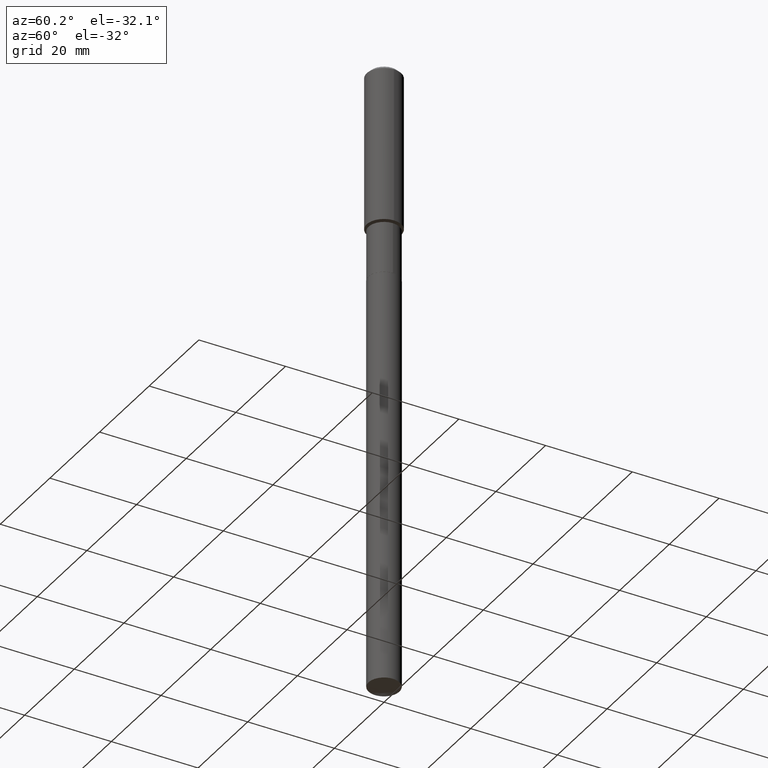
[diagram: clean part render]
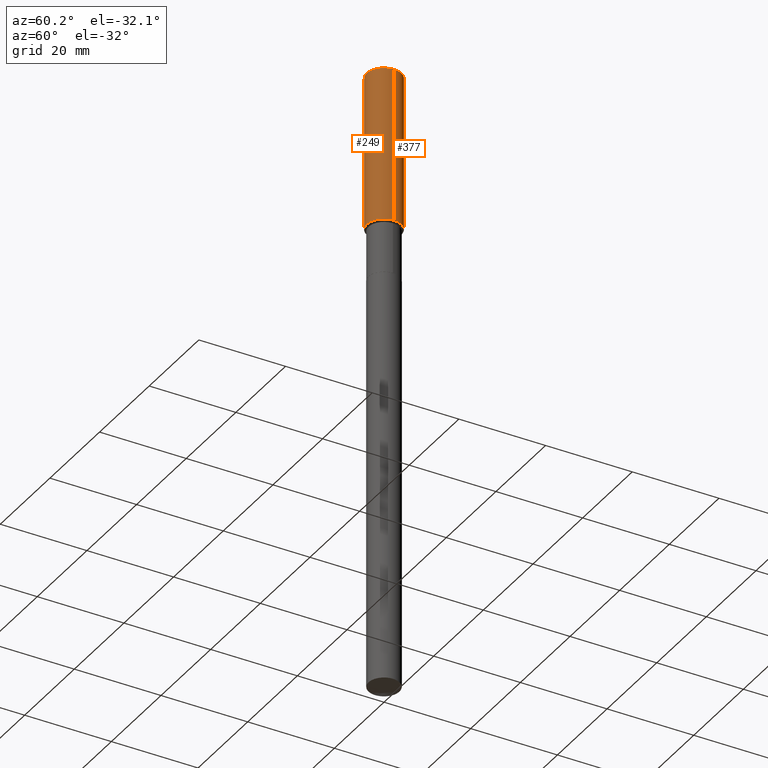
[diagram: same view with one multi-face feature highlighted, each face labeled with its STEP entity id]
A machine part, auxiliary view. The highlighted faces form ONE feature: a constant-radius fillet chain: 2 tangent blend faces with common blend radius 4.0005 mm. The faces share edges in the B-rep.
Their STEP definitions:
[1] entity #377 (Cylinder):
#11 = DIRECTION ( 'NONE',  ( -2.445468806185136877E-29, 3.491481338843145188E-15, 1.000000000000000000 ) ) ;
#16 = VERTEX_POINT ( 'NONE', #53 ) ;
#20 = ORIENTED_EDGE ( 'NONE', *, *, #34, .F. ) ;
#21 = VERTEX_POINT ( 'NONE', #49 ) ;
#34 = EDGE_CURVE ( 'NONE', #21, #16, #251, .T. ) ;
#43 = CARTESIAN_POINT ( 'NONE',  ( 0.1575000000000000844, -1.099816621735587677E-15, 7.679978421878603638E-30 ) ) ;
#49 = CARTESIAN_POINT ( 'NONE',  ( 0.1575000000000001676, -6.116726157519304807E-15, -1.436900000000000288 ) ) ;
#53 = CARTESIAN_POINT ( 'NONE',  ( 0.1575000000000000011, -1.209798283909146741E-15, -0.03150000000000019451 ) ) ;
#56 = CARTESIAN_POINT ( 'NONE',  ( 7.703226739483228723E-31, -1.099816621735597661E-16, -0.03150000000000019451 ) ) ;
#66 = CIRCLE ( 'NONE', #281, 0.1575000000000000011 ) ;
#74 = CARTESIAN_POINT ( 'NONE',  ( -0.1575000000000000011, -1.444340790156479606E-15, -0.03150000000000019451 ) ) ;
#91 = VECTOR ( 'NONE', #11, 39.37007874015748143 ) ;
#124 = EDGE_CURVE ( 'NONE', #211, #476, #339, .T. ) ;
#125 = CYLINDRICAL_SURFACE ( 'NONE', #471, 0.1575000000000000844 ) ;
#150 = CARTESIAN_POINT ( 'NONE',  ( -0.1575000000000000844, 1.119104808822158392E-15, -7.747322767151481189E-30 ) ) ;
#151 = DIRECTION ( 'NONE',  ( -2.445468806185136597E-29, 3.491481338843145583E-15, 1.000000000000000000 ) ) ;
#163 = ORIENTED_EDGE ( 'NONE', *, *, #124, .T. ) ;
#169 = CARTESIAN_POINT ( 'NONE',  ( 0.000000000000000000, 0.000000000000000000, 0.000000000000000000 ) ) ;
#185 = DIRECTION ( 'NONE',  ( 1.000000000000000000, -6.982962677686267499E-15, 0.000000000000000000 ) ) ;
#188 = CIRCLE ( 'NONE', #296, 0.1575000000000001676 ) ;
#211 = VERTEX_POINT ( 'NONE', #439 ) ;
#217 = CARTESIAN_POINT ( 'NONE',  ( 3.513894127607423393E-29, -5.016909535783716538E-15, -1.436900000000000288 ) ) ;
#240 = ORIENTED_EDGE ( 'NONE', *, *, #344, .F. ) ;
#245 = VECTOR ( 'NONE', #298, 39.37007874015748143 ) ;
#251 = LINE ( 'NONE', #43, #91 ) ;
#281 = AXIS2_PLACEMENT_3D ( 'NONE', #56, #442, #302 ) ;
#296 = AXIS2_PLACEMENT_3D ( 'NONE', #217, #151, #185 ) ;
#297 = ORIENTED_EDGE ( 'NONE', *, *, #329, .T. ) ;
#298 = DIRECTION ( 'NONE',  ( -2.445468806185136877E-29, 3.491481338843145188E-15, 1.000000000000000000 ) ) ;
#302 = DIRECTION ( 'NONE',  ( 1.000000000000000000, -6.982962677686265922E-15, 0.000000000000000000 ) ) ;
#324 = DIRECTION ( 'NONE',  ( 1.000000000000000000, -6.982962677686267499E-15, 4.876176775795936353E-29 ) ) ;
#329 = EDGE_CURVE ( 'NONE', #21, #211, #188, .T. ) ;
#339 = LINE ( 'NONE', #150, #245 ) ;
#344 = EDGE_CURVE ( 'NONE', #16, #476, #66, .T. ) ;
#354 = DIRECTION ( 'NONE',  ( -2.445468806185136597E-29, 3.491481338843145583E-15, 1.000000000000000000 ) ) ;
#369 = EDGE_LOOP ( 'NONE', ( #297, #163, #240, #20 ) ) ;
#377 = ADVANCED_FACE ( 'NONE', ( #461 ), #125, .T. ) ;
#439 = CARTESIAN_POINT ( 'NONE',  ( -0.1575000000000001676, -3.897804726961557357E-15, -1.436900000000000288 ) ) ;
#442 = DIRECTION ( 'NONE',  ( -2.445468806185136597E-29, 3.491481338843145583E-15, 1.000000000000000000 ) ) ;
#461 = FACE_OUTER_BOUND ( 'NONE', #369, .T. ) ;
#471 = AXIS2_PLACEMENT_3D ( 'NONE', #169, #354, #324 ) ;
#476 = VERTEX_POINT ( 'NONE', #74 ) ;
[2] entity #249 (Cylinder):
#11 = DIRECTION ( 'NONE',  ( -2.445468806185136877E-29, 3.491481338843145188E-15, 1.000000000000000000 ) ) ;
#16 = VERTEX_POINT ( 'NONE', #53 ) ;
#21 = VERTEX_POINT ( 'NONE', #49 ) ;
#25 = CIRCLE ( 'NONE', #109, 0.1575000000000001676 ) ;
#34 = EDGE_CURVE ( 'NONE', #21, #16, #251, .T. ) ;
#43 = CARTESIAN_POINT ( 'NONE',  ( 0.1575000000000000844, -1.099816621735587677E-15, 7.679978421878603638E-30 ) ) ;
#49 = CARTESIAN_POINT ( 'NONE',  ( 0.1575000000000001676, -6.116726157519304807E-15, -1.436900000000000288 ) ) ;
#53 = CARTESIAN_POINT ( 'NONE',  ( 0.1575000000000000011, -1.209798283909146741E-15, -0.03150000000000019451 ) ) ;
#74 = CARTESIAN_POINT ( 'NONE',  ( -0.1575000000000000011, -1.444340790156479606E-15, -0.03150000000000019451 ) ) ;
#91 = VECTOR ( 'NONE', #11, 39.37007874015748143 ) ;
#109 = AXIS2_PLACEMENT_3D ( 'NONE', #372, #300, #262 ) ;
#115 = DIRECTION ( 'NONE',  ( 1.000000000000000000, -6.982962677686265922E-15, 0.000000000000000000 ) ) ;
#124 = EDGE_CURVE ( 'NONE', #211, #476, #339, .T. ) ;
#142 = ORIENTED_EDGE ( 'NONE', *, *, #34, .T. ) ;
#150 = CARTESIAN_POINT ( 'NONE',  ( -0.1575000000000000844, 1.119104808822158392E-15, -7.747322767151481189E-30 ) ) ;
#157 = DIRECTION ( 'NONE',  ( -2.445468806185136597E-29, 3.491481338843145583E-15, 1.000000000000000000 ) ) ;
#180 = EDGE_LOOP ( 'NONE', ( #254, #441, #142, #406 ) ) ;
#181 = AXIS2_PLACEMENT_3D ( 'NONE', #263, #376, #378 ) ;
#193 = CARTESIAN_POINT ( 'NONE',  ( 7.703226739483228723E-31, -1.099816621735597661E-16, -0.03150000000000019451 ) ) ;
#211 = VERTEX_POINT ( 'NONE', #439 ) ;
#245 = VECTOR ( 'NONE', #298, 39.37007874015748143 ) ;
#249 = ADVANCED_FACE ( 'NONE', ( #304 ), #448, .T. ) ;
#251 = LINE ( 'NONE', #43, #91 ) ;
#254 = ORIENTED_EDGE ( 'NONE', *, *, #124, .F. ) ;
#262 = DIRECTION ( 'NONE',  ( 1.000000000000000000, -6.982962677686267499E-15, 0.000000000000000000 ) ) ;
#263 = CARTESIAN_POINT ( 'NONE',  ( 0.000000000000000000, 0.000000000000000000, 0.000000000000000000 ) ) ;
#265 = AXIS2_PLACEMENT_3D ( 'NONE', #193, #157, #115 ) ;
#289 = EDGE_CURVE ( 'NONE', #476, #16, #449, .T. ) ;
#298 = DIRECTION ( 'NONE',  ( -2.445468806185136877E-29, 3.491481338843145188E-15, 1.000000000000000000 ) ) ;
#300 = DIRECTION ( 'NONE',  ( -2.445468806185136597E-29, 3.491481338843145583E-15, 1.000000000000000000 ) ) ;
#304 = FACE_OUTER_BOUND ( 'NONE', #180, .T. ) ;
#339 = LINE ( 'NONE', #150, #245 ) ;
#348 = EDGE_CURVE ( 'NONE', #211, #21, #25, .T. ) ;
#372 = CARTESIAN_POINT ( 'NONE',  ( 3.513894127607423393E-29, -5.016909535783716538E-15, -1.436900000000000288 ) ) ;
#376 = DIRECTION ( 'NONE',  ( -2.445468806185136597E-29, 3.491481338843145583E-15, 1.000000000000000000 ) ) ;
#378 = DIRECTION ( 'NONE',  ( 1.000000000000000000, -6.982962677686267499E-15, 4.876176775795936353E-29 ) ) ;
#406 = ORIENTED_EDGE ( 'NONE', *, *, #289, .F. ) ;
#439 = CARTESIAN_POINT ( 'NONE',  ( -0.1575000000000001676, -3.897804726961557357E-15, -1.436900000000000288 ) ) ;
#441 = ORIENTED_EDGE ( 'NONE', *, *, #348, .T. ) ;
#448 = CYLINDRICAL_SURFACE ( 'NONE', #181, 0.1575000000000000844 ) ;
#449 = CIRCLE ( 'NONE', #265, 0.1575000000000000011 ) ;
#476 = VERTEX_POINT ( 'NONE', #74 ) ;